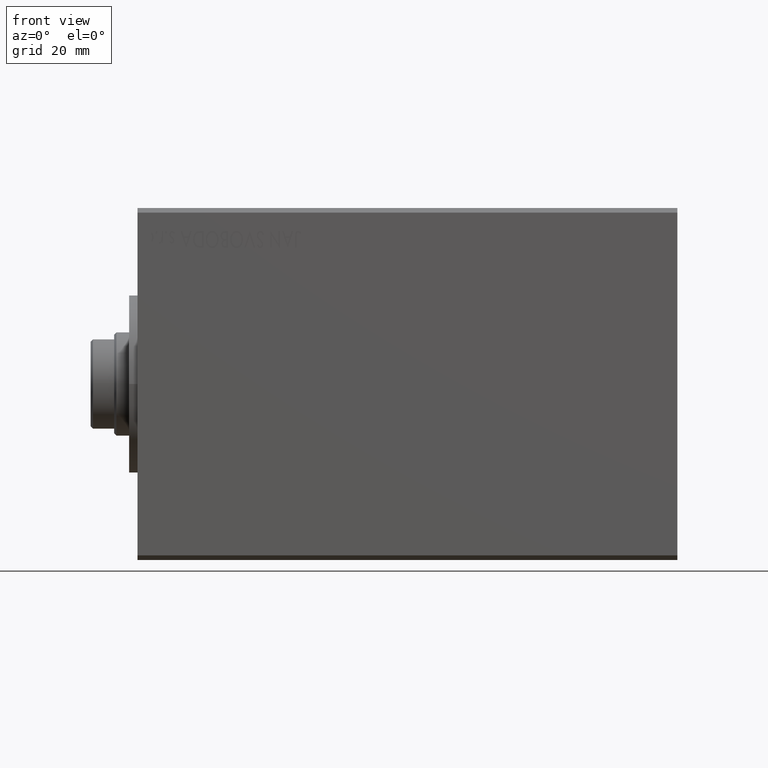
[diagram: clean part render]
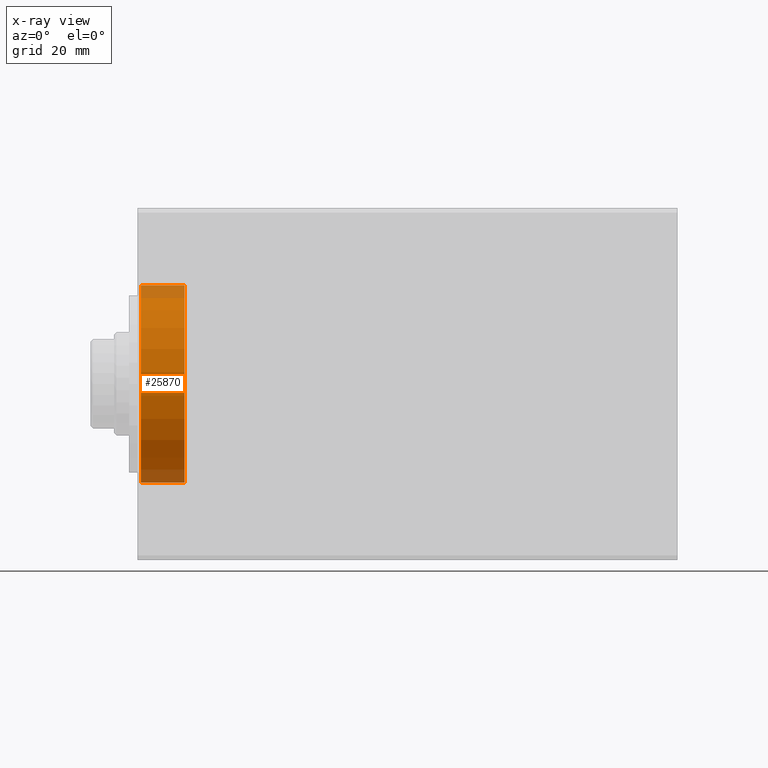
[diagram: x-ray — body ghosted, one internal face saturated and labeled with its STEP entity id]
A machine part, front view, then the same camera in x-ray: the body is ghosted and one INTERNAL B-rep face — a face not visible from any outside direction — is saturated and labeled: STEP entity #25870.
In plain terms, the highlighted cylindrical surface (partial cylindrical patch) has radius 21 mm, axis along (-1, -0, -0).
Its self-contained STEP definition (entity closure, byte-faithful):
#101 = DIRECTION ( 'NONE',  ( -1.000000000000000000, 0.000000000000000000, 0.000000000000000000 ) ) ;
#2893 = CARTESIAN_POINT ( 'NONE',  ( 10.00000000000000000, 2.571758278209441661E-15, -21.00000000000000000 ) ) ;
#4555 = DIRECTION ( 'NONE',  ( -1.000000000000000000, 0.000000000000000000, 0.000000000000000000 ) ) ;
#6875 = VERTEX_POINT ( 'NONE', #30777 ) ;
#7222 = CARTESIAN_POINT ( 'NONE',  ( 10.00000000000000000, 0.000000000000000000, 0.000000000000000000 ) ) ;
#8647 = EDGE_CURVE ( 'NONE', #29165, #6875, #25231, .T. ) ;
#8774 = VECTOR ( 'NONE', #32938, 1000.000000000000000 ) ;
#9583 = LINE ( 'NONE', #2893, #8774 ) ;
#9657 = VERTEX_POINT ( 'NONE', #27443 ) ;
#10698 = CYLINDRICAL_SURFACE ( 'NONE', #39322, 21.00000000000000000 ) ;
#13251 = ORIENTED_EDGE ( 'NONE', *, *, #8647, .F. ) ;
#13886 = VECTOR ( 'NONE', #31701, 1000.000000000000000 ) ;
#14285 = EDGE_CURVE ( 'NONE', #9657, #29165, #16796, .T. ) ;
#16796 = CIRCLE ( 'NONE', #31693, 21.00000000000000000 ) ;
#16941 = DIRECTION ( 'NONE',  ( -1.000000000000000000, -0.000000000000000000, -0.000000000000000000 ) ) ;
#20053 = FACE_OUTER_BOUND ( 'NONE', #23742, .T. ) ;
#23742 = EDGE_LOOP ( 'NONE', ( #33903, #42127, #31082, #13251 ) ) ;
#24134 = CARTESIAN_POINT ( 'NONE',  ( 0.7000000000000443645, 0.000000000000000000, 0.000000000000000000 ) ) ;
#24577 = DIRECTION ( 'NONE',  ( 0.000000000000000000, 0.000000000000000000, -1.000000000000000000 ) ) ;
#25093 = AXIS2_PLACEMENT_3D ( 'NONE', #24134, #101, #24577 ) ;
#25231 = LINE ( 'NONE', #42137, #13886 ) ;
#25870 = ADVANCED_FACE ( 'NONE', ( #20053 ), #10698, .F. ) ;
#27443 = CARTESIAN_POINT ( 'NONE',  ( 10.00000000000000000, 2.571758278209441661E-15, -21.00000000000000000 ) ) ;
#28871 = CARTESIAN_POINT ( 'NONE',  ( 0.7000000000000443645, 2.571758278209441661E-15, -21.00000000000000000 ) ) ;
#29165 = VERTEX_POINT ( 'NONE', #39700 ) ;
#29618 = EDGE_CURVE ( 'NONE', #35877, #6875, #43538, .T. ) ;
#30159 = EDGE_CURVE ( 'NONE', #9657, #35877, #9583, .T. ) ;
#30746 = CARTESIAN_POINT ( 'NONE',  ( 10.00000000000000000, 0.000000000000000000, 0.000000000000000000 ) ) ;
#30777 = CARTESIAN_POINT ( 'NONE',  ( 0.7000000000000443645, 0.000000000000000000, 21.00000000000000000 ) ) ;
#31082 = ORIENTED_EDGE ( 'NONE', *, *, #29618, .T. ) ;
#31693 = AXIS2_PLACEMENT_3D ( 'NONE', #7222, #4555, #38371 ) ;
#31701 = DIRECTION ( 'NONE',  ( -1.000000000000000000, -0.000000000000000000, -0.000000000000000000 ) ) ;
#32938 = DIRECTION ( 'NONE',  ( -1.000000000000000000, -0.000000000000000000, -0.000000000000000000 ) ) ;
#33903 = ORIENTED_EDGE ( 'NONE', *, *, #14285, .F. ) ;
#35877 = VERTEX_POINT ( 'NONE', #28871 ) ;
#38371 = DIRECTION ( 'NONE',  ( 0.000000000000000000, 0.000000000000000000, 1.000000000000000000 ) ) ;
#39322 = AXIS2_PLACEMENT_3D ( 'NONE', #30746, #16941, #40516 ) ;
#39700 = CARTESIAN_POINT ( 'NONE',  ( 10.00000000000000000, 0.000000000000000000, 21.00000000000000000 ) ) ;
#40516 = DIRECTION ( 'NONE',  ( 0.000000000000000000, 0.000000000000000000, 1.000000000000000000 ) ) ;
#42127 = ORIENTED_EDGE ( 'NONE', *, *, #30159, .T. ) ;
#42137 = CARTESIAN_POINT ( 'NONE',  ( 10.00000000000000000, 0.000000000000000000, 21.00000000000000000 ) ) ;
#43538 = CIRCLE ( 'NONE', #25093, 21.00000000000000000 ) ;